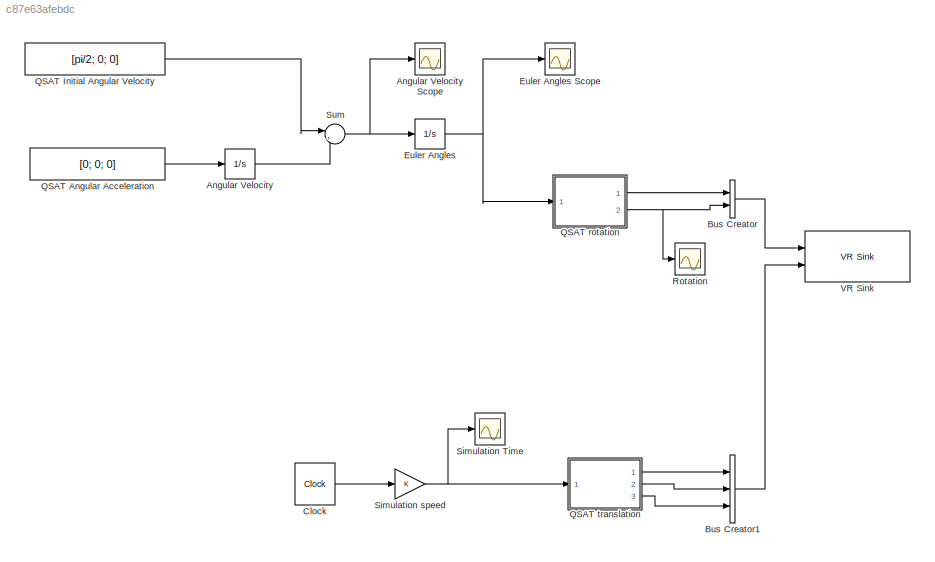
MODEL slx_c87e63afebdc
KIND model
CONFIG AbsTol = auto
CONFIG EnableMultiTasking = off
CONFIG FixedStep = auto
CONFIG MaxStep = auto
CONFIG MinStep = auto
CONFIG RelTol = 1e-3
CONFIG SampleTimeConstraint = Unconstrained
CONFIG Solver = VariableStepAuto
CONFIG SolverName = VariableStepAuto
CONFIG StartTime = 0.0
CONFIG StopTime = 10
BLOCK [Integrator] Angular Velocity
  Ports = [1, 1]
BLOCK [Scope] Angular Velocity Scope
  Floating = off
  NumInputPorts = 1
  Ports = [1]
  ScopeSpecificationString = Simulink.scopes.TimeScopeBlockCfg('CurrentConfiguration', extmgr.ConfigurationSet(extmgr.Configuration('Core','General UI',true),extmgr.Configuration('Core','Source UI',true),extmgr.Configuration('Sources','WiredSimulink',true,'DataLoggingVariableName','ScopeData1'),extmgr.Configuration('Visuals','Time Domain',true,'SerializedDisplays',{struct('MinYLimReal','-1.66897','MaxYLimReal','15.02074','YLa...<+1415ch>
BLOCK [BusCreator] Bus Creator
  DisplayOption = bar
  InheritFromInputs = on
  Inputs = 2
  Ports = [2, 1]
BLOCK [BusCreator] Bus Creator1
  DisplayOption = bar
  InheritFromInputs = on
  Inputs = 3
  Ports = [3, 1]
BLOCK [Clock] Clock 
  DisplayTime = on
BLOCK [Integrator] Euler Angles
  Ports = [1, 1]
BLOCK [Scope] Euler Angles Scope
  Floating = off
  NumInputPorts = 1
  Ports = [1]
  ScopeSpecificationString = Simulink.scopes.TimeScopeBlockCfg('CurrentConfiguration', extmgr.ConfigurationSet(extmgr.Configuration('Core','General UI',true),extmgr.Configuration('Core','Source UI',true),extmgr.Configuration('Sources','WiredSimulink',true,'DataLoggingVariableName','ScopeData2'),extmgr.Configuration('Visuals','Time Domain',true,'SerializedDisplays',{struct('MinYLimReal','-1.9635','MaxYLimReal','17.67146','YLab...<+1440ch>
BLOCK [Constant] QSAT Angular Acceleration
  Value = [0; 0; 0]
BLOCK [Constant] QSAT Initial Angular Velocity
  Value = [pi/2; 0; 0]
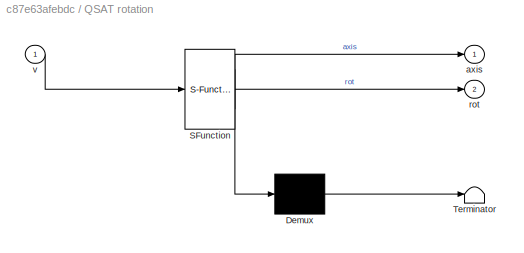
BLOCK [SubSystem] QSAT rotation
  ErrorFcn = Stateflow.Translate.translate
  PermitHierarchicalResolution = ExplicitOnly
  Ports = [1, 2]
  RequestExecContextInheritance = off
  SFBlockType = MATLAB Function
  TreatAsAtomicUnit = on
BLOCK [Demux] QSAT rotation/ Demux 
  Outputs = 1
  Ports = [1, 1]
BLOCK [S-Function] QSAT rotation/ SFunction 
  EnableBusSupport = on
  FunctionName = sf_sfun
  PortCounts = [1 3]
  Ports = [1, 3]
  SFcnIsStateOwnerBlock = off
  SFunctionDeploymentMode = off
  Tag = Stateflow S-Function rotation 2
BLOCK [Terminator] QSAT rotation/ Terminator 
BLOCK [Outport] QSAT rotation/axis
  IconDisplay = Port number
BLOCK [Outport] QSAT rotation/rot
  IconDisplay = Port number
  Port = 2
BLOCK [Inport] QSAT rotation/v
  IconDisplay = Port number
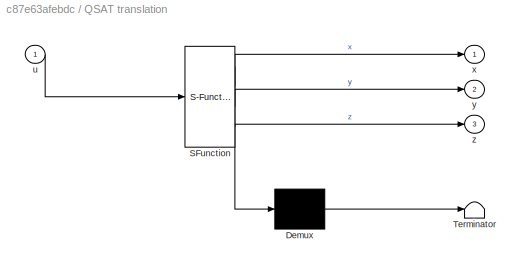
BLOCK [SubSystem] QSAT translation 
  ErrorFcn = Stateflow.Translate.translate
  PermitHierarchicalResolution = ExplicitOnly
  Ports = [1, 3]
  RequestExecContextInheritance = off
  SFBlockType = MATLAB Function
  TreatAsAtomicUnit = on
BLOCK [Demux] QSAT translation / Demux 
  Outputs = 1
  Ports = [1, 1]
BLOCK [S-Function] QSAT translation / SFunction 
  EnableBusSupport = on
  FunctionName = sf_sfun
  PortCounts = [1 4]
  Ports = [1, 4]
  SFcnIsStateOwnerBlock = off
  SFunctionDeploymentMode = off
  Tag = Stateflow S-Function rotation 1
BLOCK [Terminator] QSAT translation / Terminator 
BLOCK [Inport] QSAT translation /u
  IconDisplay = Port number
BLOCK [Outport] QSAT translation /x
  IconDisplay = Port number
BLOCK [Outport] QSAT translation /y
  IconDisplay = Port number
  Port = 2
BLOCK [Outport] QSAT translation /z
  IconDisplay = Port number
  Port = 3
BLOCK [Scope] Rotation 
  Floating = off
  NumInputPorts = 1
  Ports = [1]
  ScopeSpecificationString = Simulink.scopes.TimeScopeBlockCfg('CurrentConfiguration', extmgr.ConfigurationSet(extmgr.Configuration('Core','General UI',true),extmgr.Configuration('Core','Source UI',true),extmgr.Configuration('Sources','WiredSimulink',true),extmgr.Configuration('Visuals','Time Domain',true,'SerializedDisplays',{struct('MinYLimReal','-3.75','MaxYLimReal','33.75','YLabelReal','','MinYLimMag','0.00000','MaxYLimMa...<+1358ch>
BLOCK [Scope] Simulation Time 
  Floating = off
  NumInputPorts = 1
  Ports = [1]
  ScopeSpecificationString = Simulink.scopes.TimeScopeBlockCfg('CurrentConfiguration', extmgr.ConfigurationSet(extmgr.Configuration('Core','General UI',true),extmgr.Configuration('Core','Source UI',true),extmgr.Configuration('Sources','WiredSimulink',true,'DataLoggingVariableName','ScopeData1'),extmgr.Configuration('Visuals','Time Domain',true,'SerializedDisplays',{struct('MinYLimReal','-3.75','MaxYLimReal','33.75','YLabelRea...<+1394ch>
BLOCK [Gain] Simulation speed
  OutDataTypeStr = Inherit: Inherit via internal rule
  ParamDataTypeStr = Inherit: Inherit via internal rule
  SaturateOnIntegerOverflow = off
BLOCK [Sum] Sum
  IconShape = round
  InputSameDT = off
  Inputs = |++
  OutDataTypeStr = Inherit: Inherit via internal rule
  Ports = [2, 1]
  SaturateOnIntegerOverflow = off
BLOCK [Reference] VR Sink  REF=vrlib/VR Sink
  InstantiateOnLoad = on
  Ports = [2]
  SourceBlock = vrlib/VR Sink
  SourceProductBaseCode = VR
  SourceProductName = Simulink 3D Animation
  SourceType = Virtual Reality Sink
LINE Angular Velocity:1 -> Sum:2
LINE Bus Creator1:1 -> VR Sink:2
LINE Bus Creator:1 -> VR Sink:1
LINE Clock :1 -> Simulation speed:1
NET Euler Angles:1 -> Euler Angles Scope:1, QSAT rotation:1
LINE QSAT Angular Acceleration:1 -> Angular Velocity:1
LINE QSAT Initial Angular Velocity:1 -> Sum:1
LINE QSAT rotation:1 -> Bus Creator:1
NET QSAT rotation:2 -> Bus Creator:2, Rotation :1
LINE QSAT translation :1 -> Bus Creator1:1
LINE QSAT translation :2 -> Bus Creator1:2
LINE QSAT translation :3 -> Bus Creator1:3
NET Simulation speed:1 -> QSAT translation :1, Simulation Time :1
NET Sum:1 -> Angular Velocity Scope:1, Euler Angles:1
note: NET lines group one-source signal fan-out (src -> all destinations, sorted); 1:1 wires keep LINE
CHART QSAT translation
 states=1 transitions=1
  STATE_LABEL 'eML_blk_kernel()'
  STATE_LABEL 'SCRIPT:\nfunction [x,y,z] = fcn(u)\n    x=0;\n    y=0;\n    z=0;\nend'
CHART QSAT rotation states=1 transitions=1
  STATE_LABEL 'eML_blk_kernel()'
  STATE_LABEL 'SCRIPT:\nfunction [axis,rot] = fcn(v)\n    \n    %setup for manipulation\n    cx = cos(v(1)/2);\n    cy = cos(v(2)/2);\n    cz = cos(v(3)/2);\n    \n    sx = sin(v(1)/2);\n    sy = sin(v(2)/2);\n    sz = sin(v(3)/2);\n    \n    %axis calculation\n    x = sx*sy*cz + cx*cy*sz;\n    y = sx*cy*cz + cx*sy*sz;\n    z = cx*sy*cz - sx*cy*sz;\n    \n    axis = [y, z, x];\n    \n    %magnitude calculation\n    rot = 2*acos(cx*...<+23ch>'
